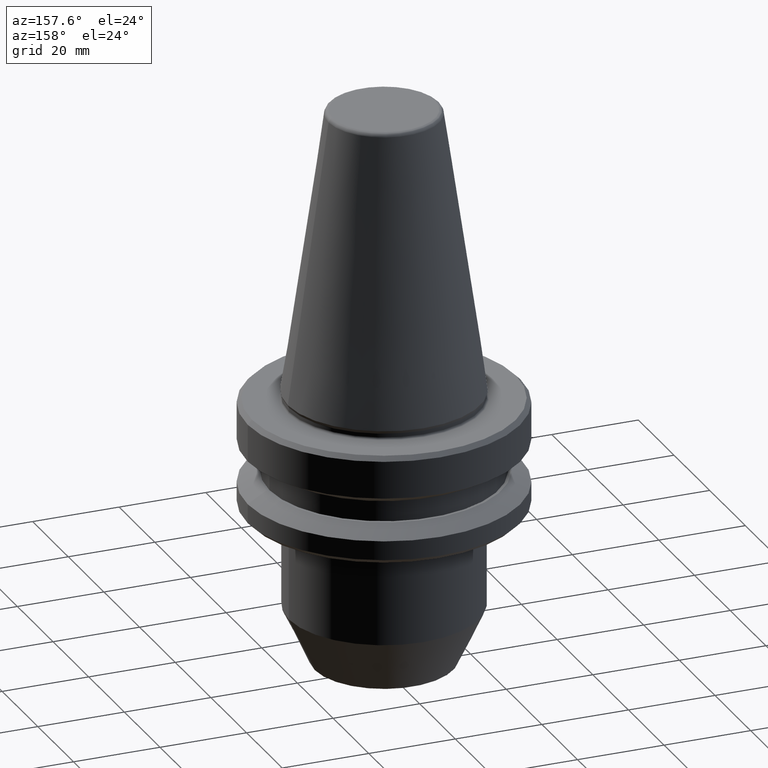
[diagram: clean part render]
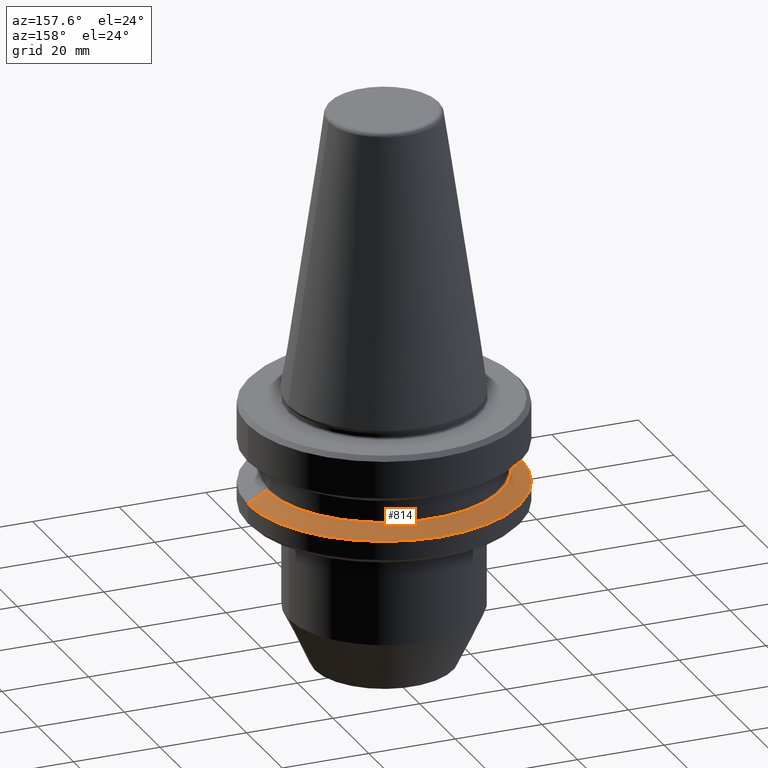
[diagram: same view with one face highlighted and labeled with its STEP entity id]
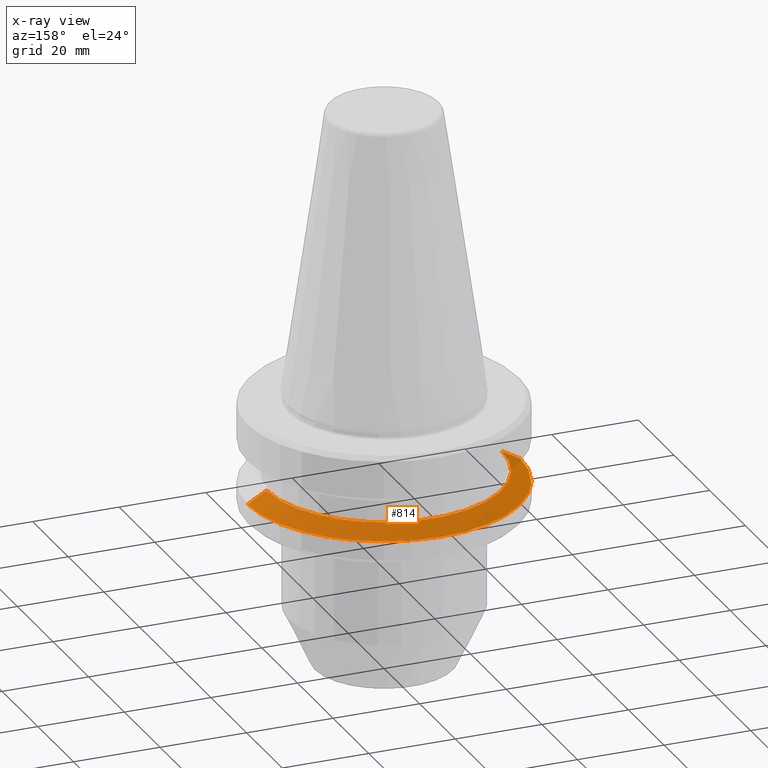
[diagram: x-ray of the same camera — body ghosted, the highlighted face saturated]
A machine part, auxiliary view. The second image highlights one B-rep face of the part: STEP entity #814.
The next image is the same camera in x-ray: the body ghosted, the highlighted face saturated — about 2% of this face is hidden behind the body in this view.
In plain terms, the highlighted conical surface has half-angle 60 deg.
Its self-contained STEP definition (entity closure, byte-faithful):
#19 = CARTESIAN_POINT ( 'NONE',  ( 0.0000000000000000000, 0.0000000000000000000, -20.91142879476059900 ) ) ;
#20 = AXIS2_PLACEMENT_3D ( 'NONE', #386, #80, #906 ) ;
#37 = DIRECTION ( 'NONE',  ( 0.8660254037844400400, 1.060575238724908600E-016, -0.4999999999999976100 ) ) ;
#80 = DIRECTION ( 'NONE',  ( -0.0000000000000000000, -0.0000000000000000000, 1.000000000000000000 ) ) ;
#81 = CIRCLE ( 'NONE', #20, 27.16962701892167300 ) ;
#89 = AXIS2_PLACEMENT_3D ( 'NONE', #19, #188, #452 ) ;
#93 = AXIS2_PLACEMENT_3D ( 'NONE', #743, #676, #250 ) ;
#103 = VERTEX_POINT ( 'NONE', #288 ) ;
#107 = ORIENTED_EDGE ( 'NONE', *, *, #898, .F. ) ;
#167 = VERTEX_POINT ( 'NONE', #323 ) ;
#188 = DIRECTION ( 'NONE',  ( -0.0000000000000000000, -0.0000000000000000000, 1.000000000000000000 ) ) ;
#192 = CIRCLE ( 'NONE', #89, 31.50000000000019500 ) ;
#194 = ORIENTED_EDGE ( 'NONE', *, *, #868, .T. ) ;
#250 = DIRECTION ( 'NONE',  ( -1.000000000000000000, 0.0000000000000000000, 0.0000000000000000000 ) ) ;
#262 = ORIENTED_EDGE ( 'NONE', *, *, #925, .F. ) ;
#288 = CARTESIAN_POINT ( 'NONE',  ( 27.16962701892167300, 3.592478546794586600E-015, -18.41128678844344800 ) ) ;
#323 = CARTESIAN_POINT ( 'NONE',  ( -31.50000000000019500, 3.857637417314186400E-015, -20.91142879476059900 ) ) ;
#357 = LINE ( 'NONE', #546, #745 ) ;
#386 = CARTESIAN_POINT ( 'NONE',  ( 0.0000000000000000000, 0.0000000000000000000, -18.41128678844344800 ) ) ;
#396 = CARTESIAN_POINT ( 'NONE',  ( -31.50000000000019500, 0.0000000000000000000, -20.91142879476059900 ) ) ;
#423 = CONICAL_SURFACE ( 'NONE', #93, 31.50000000000019500, 1.047197551196600500 ) ;
#452 = DIRECTION ( 'NONE',  ( 1.000000000000000000, 0.0000000000000000000, 0.0000000000000000000 ) ) ;
#453 = DIRECTION ( 'NONE',  ( -0.8660254037844400400, 0.0000000000000000000, -0.4999999999999976100 ) ) ;
#519 = FACE_OUTER_BOUND ( 'NONE', #601, .T. ) ;
#537 = VERTEX_POINT ( 'NONE', #579 ) ;
#546 = CARTESIAN_POINT ( 'NONE',  ( 31.50000000000019500, 3.857637417314186400E-015, -20.91142879476059900 ) ) ;
#579 = CARTESIAN_POINT ( 'NONE',  ( 31.50000000000019500, 0.0000000000000000000, -20.91142879476059900 ) ) ;
#601 = EDGE_LOOP ( 'NONE', ( #107, #194, #796, #262 ) ) ;
#623 = VECTOR ( 'NONE', #453, 1000.000000000000000 ) ;
#676 = DIRECTION ( 'NONE',  ( 0.0000000000000000000, 0.0000000000000000000, -1.000000000000000000 ) ) ;
#707 = CARTESIAN_POINT ( 'NONE',  ( -27.16962701892167300, 0.0000000000000000000, -18.41128678844344800 ) ) ;
#743 = CARTESIAN_POINT ( 'NONE',  ( 0.0000000000000000000, 0.0000000000000000000, -20.91142879476059900 ) ) ;
#745 = VECTOR ( 'NONE', #37, 1000.000000000000000 ) ;
#796 = ORIENTED_EDGE ( 'NONE', *, *, #827, .T. ) ;
#814 = ADVANCED_FACE ( 'NONE', ( #519 ), #423, .T. ) ;
#818 = LINE ( 'NONE', #396, #623 ) ;
#827 = EDGE_CURVE ( 'NONE', #537, #167, #192, .T. ) ;
#868 = EDGE_CURVE ( 'NONE', #103, #537, #357, .T. ) ;
#898 = EDGE_CURVE ( 'NONE', #103, #982, #81, .T. ) ;
#906 = DIRECTION ( 'NONE',  ( 1.000000000000000000, 0.0000000000000000000, 0.0000000000000000000 ) ) ;
#925 = EDGE_CURVE ( 'NONE', #982, #167, #818, .T. ) ;
#982 = VERTEX_POINT ( 'NONE', #707 ) ;